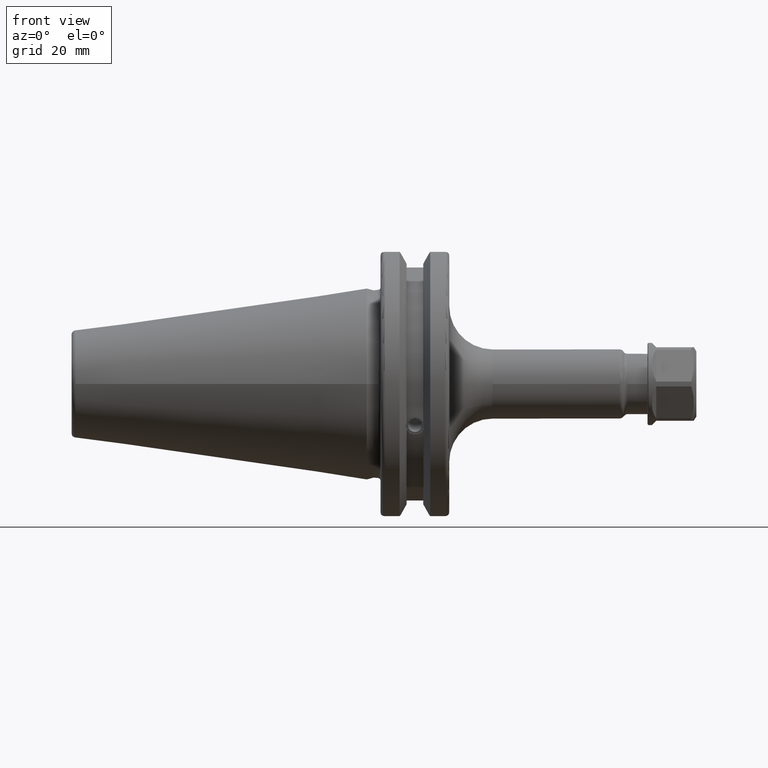
[diagram: clean part render]
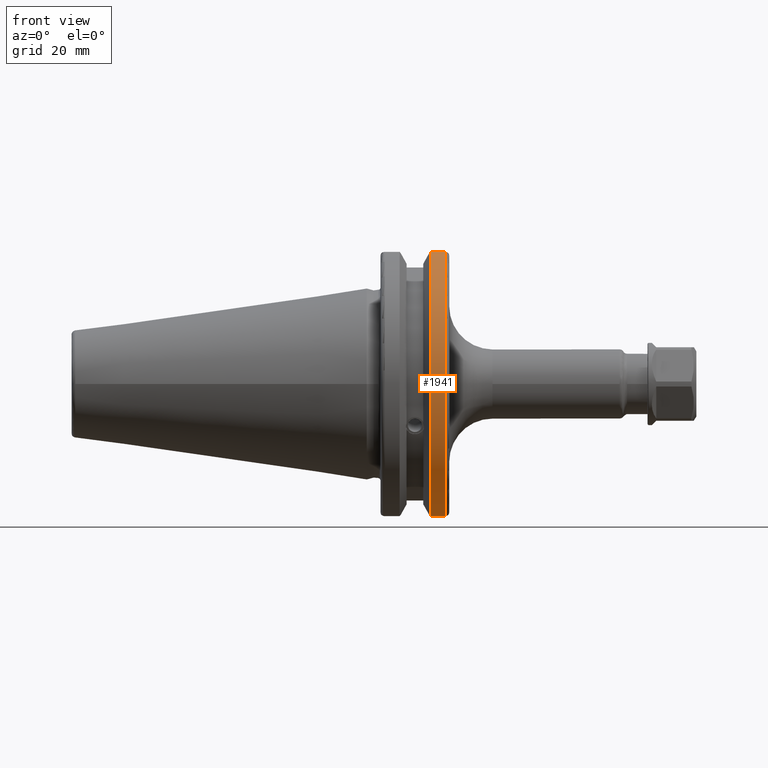
[diagram: same view with one face highlighted and labeled with its STEP entity id]
A machine part, front view. The second image highlights one B-rep face of the part: STEP entity #1941.
In plain terms, the highlighted cylindrical surface (partial cylindrical patch) has radius 31.75 mm, axis along (1, 0, 0).
Its self-contained STEP definition (entity closure, byte-faithful):
#144=CYLINDRICAL_SURFACE('',#2200,31.75);
#291=FACE_OUTER_BOUND('',#413,.T.);
#413=EDGE_LOOP('',(#1666,#1667,#1668,#1669));
#545=LINE('',#3677,#662);
#546=LINE('',#3679,#663);
#662=VECTOR('',#2671,10.);
#663=VECTOR('',#2674,10.);
#723=CIRCLE('',#2112,31.75);
#749=CIRCLE('',#2172,31.75);
#849=VERTEX_POINT('',#3229);
#850=VERTEX_POINT('',#3233);
#916=VERTEX_POINT('',#3522);
#917=VERTEX_POINT('',#3531);
#1064=EDGE_CURVE('',#850,#849,#723,.T.);
#1156=EDGE_CURVE('',#916,#917,#749,.T.);
#1200=EDGE_CURVE('',#917,#849,#545,.T.);
#1201=EDGE_CURVE('',#850,#916,#546,.T.);
#1666=ORIENTED_EDGE('',*,*,#1156,.F.);
#1667=ORIENTED_EDGE('',*,*,#1201,.F.);
#1668=ORIENTED_EDGE('',*,*,#1064,.T.);
#1669=ORIENTED_EDGE('',*,*,#1200,.F.);
#1941=ADVANCED_FACE('',(#291),#144,.T.);
#2112=AXIS2_PLACEMENT_3D('',#3234,#2438,#2439);
#2172=AXIS2_PLACEMENT_3D('',#3532,#2595,#2596);
#2200=AXIS2_PLACEMENT_3D('',#3678,#2672,#2673);
#2438=DIRECTION('center_axis',(1.,0.,0.));
#2439=DIRECTION('ref_axis',(0.,0.,-1.));
#2595=DIRECTION('center_axis',(1.,0.,0.));
#2596=DIRECTION('ref_axis',(0.,-1.,1.60812264967664E-16));
#2671=DIRECTION('',(-1.,0.,0.));
#2672=DIRECTION('center_axis',(1.,0.,0.));
#2673=DIRECTION('ref_axis',(0.,-1.,1.22464679914735E-16));
#2674=DIRECTION('',(1.,0.,0.));
#3229=CARTESIAN_POINT('',(14.6531667690756,-8.67204822802685,-30.5427254764662));
#3233=CARTESIAN_POINT('',(14.6531667690756,-8.67204822802685,30.5427254764662));
#3234=CARTESIAN_POINT('Origin',(14.6531667690756,0.,0.));
#3522=CARTESIAN_POINT('',(18.05,-8.67204822802685,30.5427254764662));
#3531=CARTESIAN_POINT('',(18.05,-8.67204822802685,-30.5427254764662));
#3532=CARTESIAN_POINT('Origin',(18.05,0.,0.));
#3677=CARTESIAN_POINT('',(16.8515833845378,-8.67204822802685,-30.5427254764662));
#3678=CARTESIAN_POINT('Origin',(16.8515833845378,0.,0.));
#3679=CARTESIAN_POINT('',(16.8515833845378,-8.67204822802685,30.5427254764662));